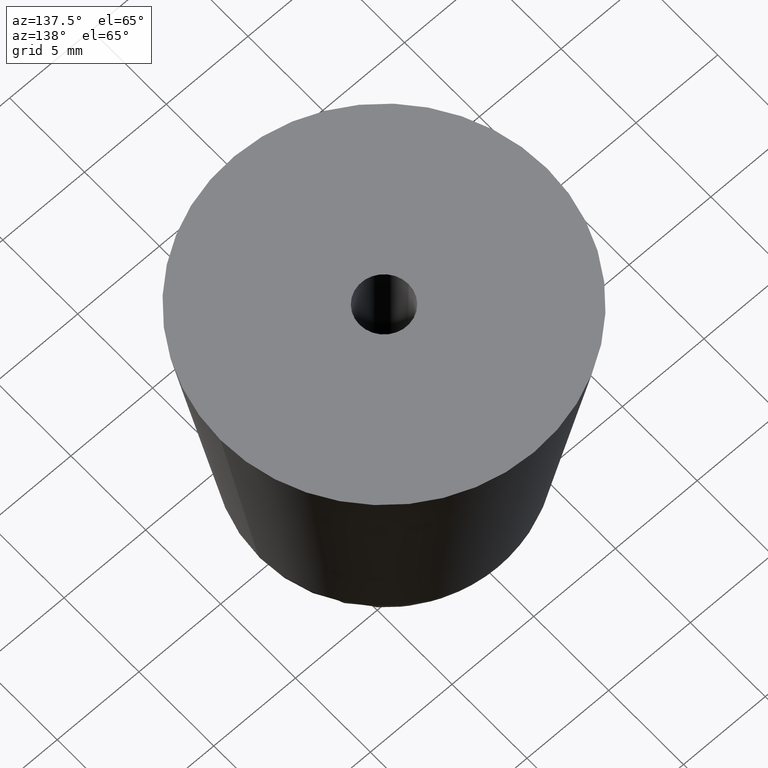
[diagram: clean part render]
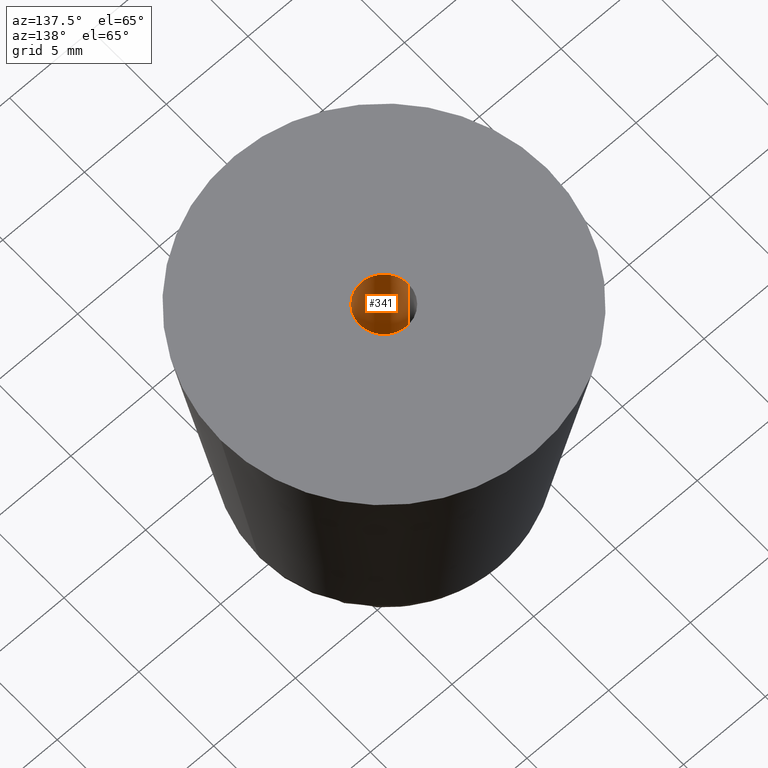
[diagram: same view with one face highlighted and labeled with its STEP entity id]
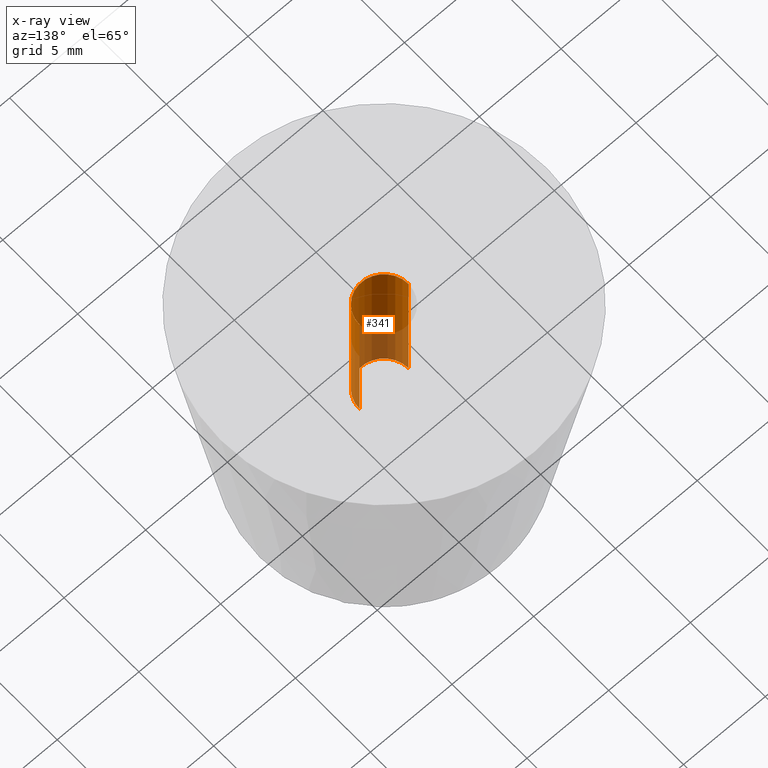
[diagram: x-ray of the same camera — body ghosted, the highlighted face saturated]
A machine part, auxiliary view. The second image highlights one B-rep face of the part: STEP entity #341.
The next image is the same camera in x-ray: the body ghosted, the highlighted face saturated — about 38% of this face is hidden behind the body in this view.
In plain terms, the highlighted cylindrical surface (edge-blend (fillet) strip) has radius 1.5 mm, axis along (0, 0, -1).
Its self-contained STEP definition (entity closure, byte-faithful):
#1 = DIRECTION ( 'NONE',  ( 0.0000000000000000000, 0.0000000000000000000, -1.000000000000000000 ) ) ;
#27 = ORIENTED_EDGE ( 'NONE', *, *, #394, .T. ) ;
#79 = AXIS2_PLACEMENT_3D ( 'NONE', #85, #148, #446 ) ;
#82 = VECTOR ( 'NONE', #564, 1000.000000000000000 ) ;
#85 = CARTESIAN_POINT ( 'NONE',  ( 0.0000000000000000000, 0.0000000000000000000, 0.0000000000000000000 ) ) ;
#132 = EDGE_LOOP ( 'NONE', ( #717, #27, #609, #625 ) ) ;
#148 = DIRECTION ( 'NONE',  ( 0.0000000000000000000, 0.0000000000000000000, -1.000000000000000000 ) ) ;
#151 = DIRECTION ( 'NONE',  ( 0.0000000000000000000, 0.0000000000000000000, -1.000000000000000000 ) ) ;
#157 = LINE ( 'NONE', #379, #82 ) ;
#218 = CARTESIAN_POINT ( 'NONE',  ( 1.500000000000000000, 1.836970198721029900E-016, 17.00000000000000000 ) ) ;
#225 = CYLINDRICAL_SURFACE ( 'NONE', #79, 1.500000000000000000 ) ;
#229 = DIRECTION ( 'NONE',  ( 0.0000000000000000000, 0.0000000000000000000, -1.000000000000000000 ) ) ;
#233 = CARTESIAN_POINT ( 'NONE',  ( 1.500000000000000000, 1.836970198721029900E-016, 0.0000000000000000000 ) ) ;
#235 = EDGE_CURVE ( 'NONE', #657, #761, #275, .T. ) ;
#275 = CIRCLE ( 'NONE', #505, 1.500000000000000000 ) ;
#341 = ADVANCED_FACE ( 'NONE', ( #359 ), #225, .F. ) ;
#356 = CARTESIAN_POINT ( 'NONE',  ( 0.0000000000000000000, 0.0000000000000000000, 7.999999999999899600 ) ) ;
#359 = FACE_OUTER_BOUND ( 'NONE', #132, .T. ) ;
#373 = EDGE_CURVE ( 'NONE', #472, #613, #478, .T. ) ;
#379 = CARTESIAN_POINT ( 'NONE',  ( -1.500000000000000000, 0.0000000000000000000, 0.0000000000000000000 ) ) ;
#394 = EDGE_CURVE ( 'NONE', #657, #472, #562, .T. ) ;
#399 = VECTOR ( 'NONE', #229, 1000.000000000000000 ) ;
#414 = DIRECTION ( 'NONE',  ( -1.000000000000000000, 0.0000000000000000000, 0.0000000000000000000 ) ) ;
#446 = DIRECTION ( 'NONE',  ( -1.000000000000000000, 0.0000000000000000000, 0.0000000000000000000 ) ) ;
#472 = VERTEX_POINT ( 'NONE', #583 ) ;
#478 = CIRCLE ( 'NONE', #652, 1.500000000000000000 ) ;
#494 = EDGE_CURVE ( 'NONE', #761, #613, #157, .T. ) ;
#505 = AXIS2_PLACEMENT_3D ( 'NONE', #518, #151, #572 ) ;
#518 = CARTESIAN_POINT ( 'NONE',  ( 0.0000000000000000000, 0.0000000000000000000, 17.00000000000000000 ) ) ;
#542 = CARTESIAN_POINT ( 'NONE',  ( -1.500000000000000000, 0.0000000000000000000, 17.00000000000000000 ) ) ;
#562 = LINE ( 'NONE', #233, #399 ) ;
#564 = DIRECTION ( 'NONE',  ( 0.0000000000000000000, 0.0000000000000000000, -1.000000000000000000 ) ) ;
#572 = DIRECTION ( 'NONE',  ( -1.000000000000000000, 0.0000000000000000000, 0.0000000000000000000 ) ) ;
#583 = CARTESIAN_POINT ( 'NONE',  ( 1.500000000000000000, 1.836970198721029900E-016, 7.999999999999899600 ) ) ;
#608 = CARTESIAN_POINT ( 'NONE',  ( -1.500000000000000000, 0.0000000000000000000, 7.999999999999899600 ) ) ;
#609 = ORIENTED_EDGE ( 'NONE', *, *, #373, .T. ) ;
#613 = VERTEX_POINT ( 'NONE', #608 ) ;
#625 = ORIENTED_EDGE ( 'NONE', *, *, #494, .F. ) ;
#652 = AXIS2_PLACEMENT_3D ( 'NONE', #356, #1, #414 ) ;
#657 = VERTEX_POINT ( 'NONE', #218 ) ;
#717 = ORIENTED_EDGE ( 'NONE', *, *, #235, .F. ) ;
#761 = VERTEX_POINT ( 'NONE', #542 ) ;